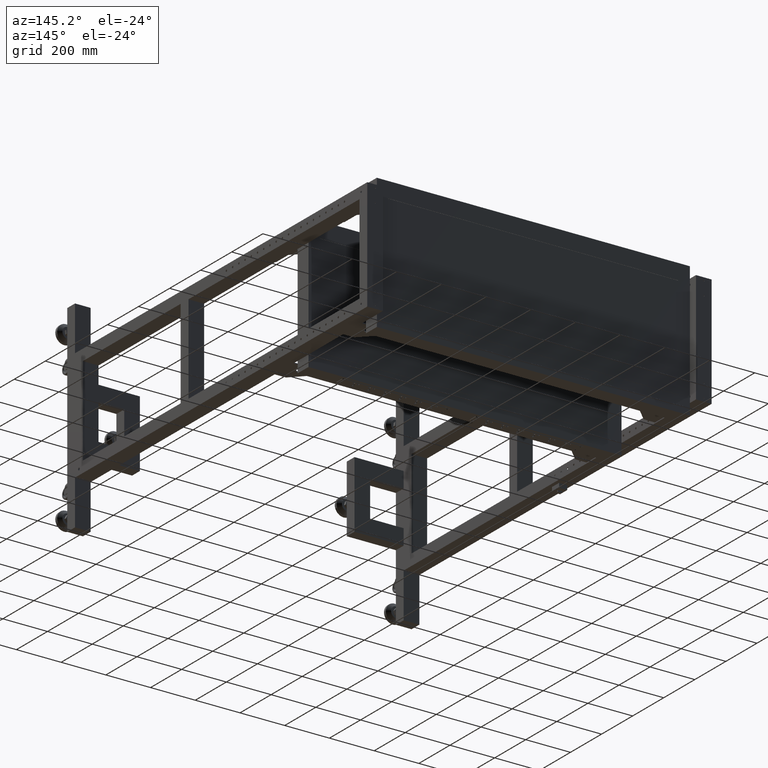
[diagram: clean part render]
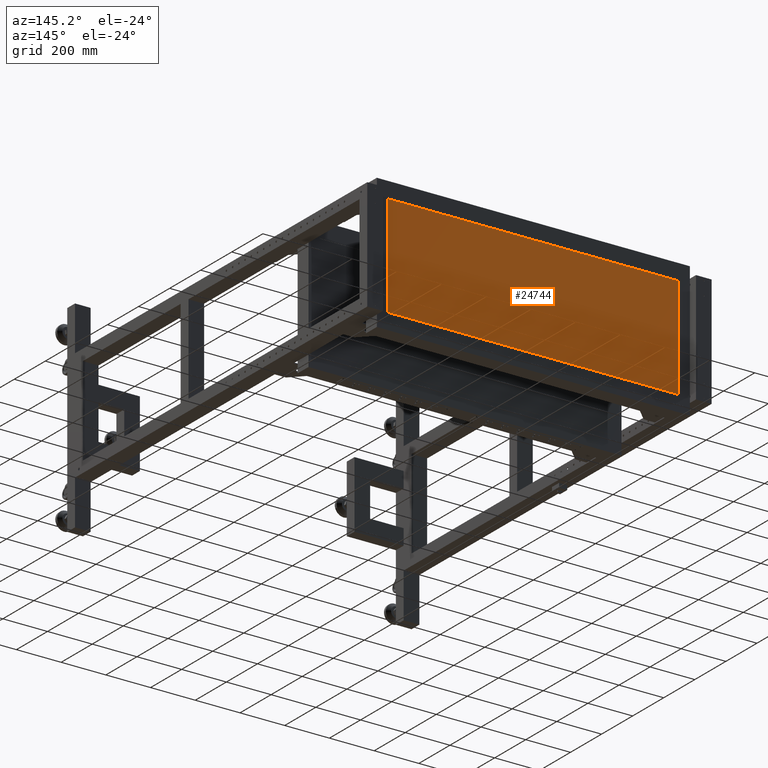
[diagram: same view with one face highlighted and labeled with its STEP entity id]
A machine part, auxiliary view. The second image highlights one B-rep face of the part: STEP entity #24744.
In plain terms, the highlighted planar face has unit normal (-0, 1, 0).
Its self-contained STEP definition (entity closure, byte-faithful):
#447 = VERTEX_POINT ( 'NONE', #18629 ) ;
#5983 = AXIS2_PLACEMENT_3D ( 'NONE', #56752, #33184, #45972 ) ;
#6396 = VERTEX_POINT ( 'NONE', #26301 ) ;
#6672 = ORIENTED_EDGE ( 'NONE', *, *, #33920, .F. ) ;
#12050 = LINE ( 'NONE', #30347, #71827 ) ;
#18065 = DIRECTION ( 'NONE',  ( 1.599092233257933979E-31, -1.000000000000000472E-15, 1.000000000000000000 ) ) ;
#18629 = CARTESIAN_POINT ( 'NONE',  ( -1218.172487437185282, 996.9410804020130854, -228.4899999999988438 ) ) ;
#19529 = VERTEX_POINT ( 'NONE', #61525 ) ;
#19596 = DIRECTION ( 'NONE',  ( 1.168946273182390932E-31, -1.000000000000000472E-15, 1.000000000000000000 ) ) ;
#23017 = VERTEX_POINT ( 'NONE', #74433 ) ;
#24439 = VECTOR ( 'NONE', #19596, 1000.000000000000000 ) ;
#24744 = ADVANCED_FACE ( 'NONE', ( #62737 ), #32386, .T. ) ;
#26301 = CARTESIAN_POINT ( 'NONE',  ( 81.82751256281494534, 996.9410804020133128, -228.4899999999988438 ) ) ;
#29931 = ORIENTED_EDGE ( 'NONE', *, *, #68496, .T. ) ;
#30347 = CARTESIAN_POINT ( 'NONE',  ( 230.3175125628156366, 996.9410804020128580, 228.4900000000011744 ) ) ;
#32386 = PLANE ( 'NONE',  #5983 ) ;
#32579 = CARTESIAN_POINT ( 'NONE',  ( -2166.662487437184609, 996.9410804020126307, -228.4899999999988438 ) ) ;
#33184 = DIRECTION ( 'NONE',  ( -2.768038506440323819E-16, 1.000000000000000000, 1.000000000000000472E-15 ) ) ;
#33920 = EDGE_CURVE ( 'NONE', #447, #6396, #44972, .T. ) ;
#44329 = CARTESIAN_POINT ( 'NONE',  ( 81.82751256281473218, 996.9410804020130854, 1.167234175856414513E-12 ) ) ;
#44972 = LINE ( 'NONE', #32579, #49464 ) ;
#45972 = DIRECTION ( 'NONE',  ( 2.768038506440324911E-31, -1.000000000000000472E-15, 1.000000000000000000 ) ) ;
#47342 = ORIENTED_EDGE ( 'NONE', *, *, #49416, .F. ) ;
#49416 = EDGE_CURVE ( 'NONE', #6396, #23017, #50310, .T. ) ;
#49464 = VECTOR ( 'NONE', #56551, 1000.000000000000000 ) ;
#50310 = LINE ( 'NONE', #44329, #24439 ) ;
#53598 = ORIENTED_EDGE ( 'NONE', *, *, #61486, .F. ) ;
#54110 = EDGE_LOOP ( 'NONE', ( #6672, #29931, #53598, #47342 ) ) ;
#56551 = DIRECTION ( 'NONE',  ( 1.000000000000000000, 2.768038506440323819E-16, 0.000000000000000000 ) ) ;
#56752 = CARTESIAN_POINT ( 'NONE',  ( -968.1724874371843725, 996.9410804020127443, 1.167234175856414311E-12 ) ) ;
#59921 = DIRECTION ( 'NONE',  ( -1.000000000000000000, -2.768038506440323819E-16, 0.000000000000000000 ) ) ;
#60376 = LINE ( 'NONE', #66773, #67948 ) ;
#61486 = EDGE_CURVE ( 'NONE', #23017, #19529, #12050, .T. ) ;
#61525 = CARTESIAN_POINT ( 'NONE',  ( -1218.172487437185055, 996.9410804020126307, 228.4900000000011744 ) ) ;
#62737 = FACE_OUTER_BOUND ( 'NONE', #54110, .T. ) ;
#66773 = CARTESIAN_POINT ( 'NONE',  ( -1218.172487437185055, 996.9410804020128580, 1.167234175856414513E-12 ) ) ;
#67948 = VECTOR ( 'NONE', #18065, 1000.000000000000000 ) ;
#68496 = EDGE_CURVE ( 'NONE', #447, #19529, #60376, .T. ) ;
#71827 = VECTOR ( 'NONE', #59921, 1000.000000000000000 ) ;
#74433 = CARTESIAN_POINT ( 'NONE',  ( 81.82751256281473218, 996.9410804020128580, 228.4900000000011744 ) ) ;